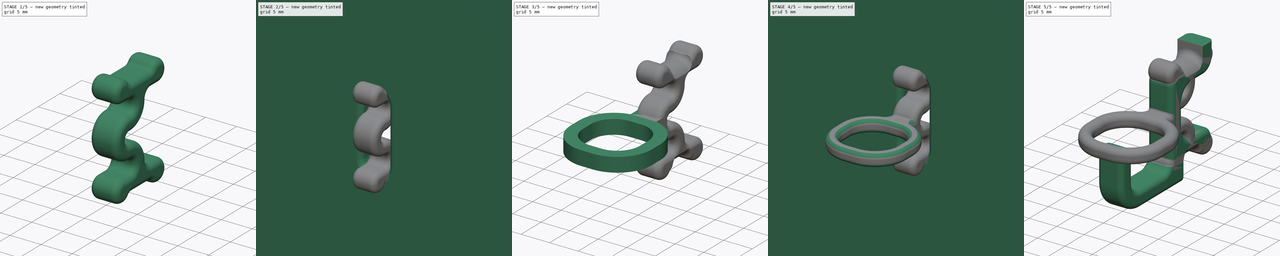
[diagram: build sequence overview — one tinted view per stage of 5, left to right]
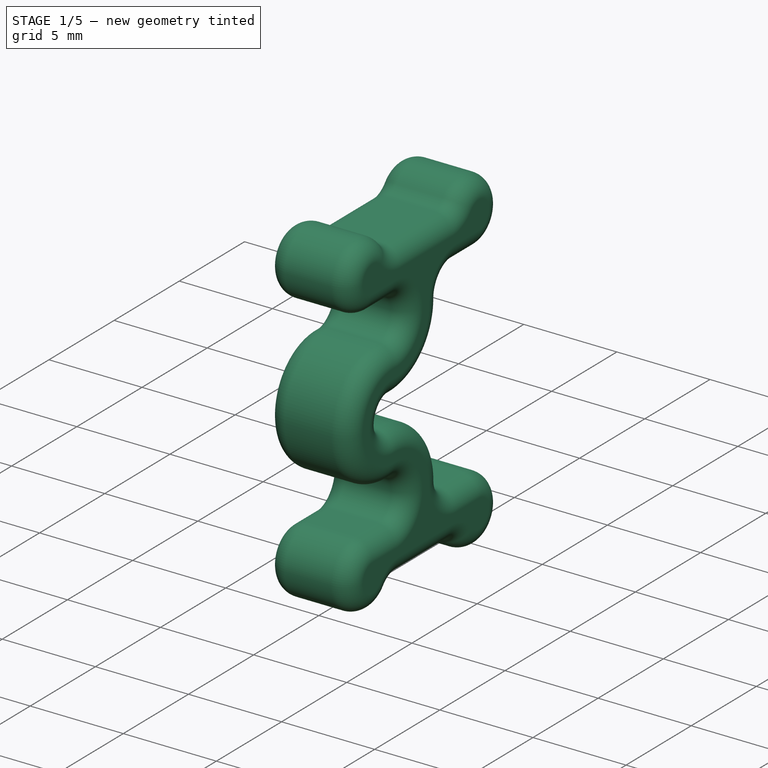
[diagram: stage 1 of 5 — iso view after this stage's code; geometry added in this stage tinted green]
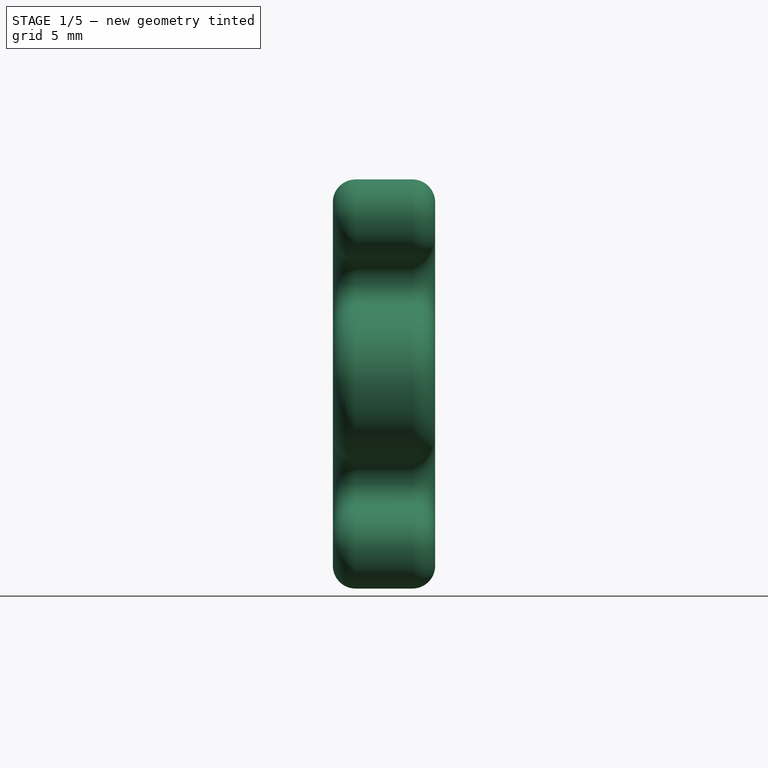
[diagram: stage 1 of 5 — front view after this stage's code; geometry added in this stage tinted green]
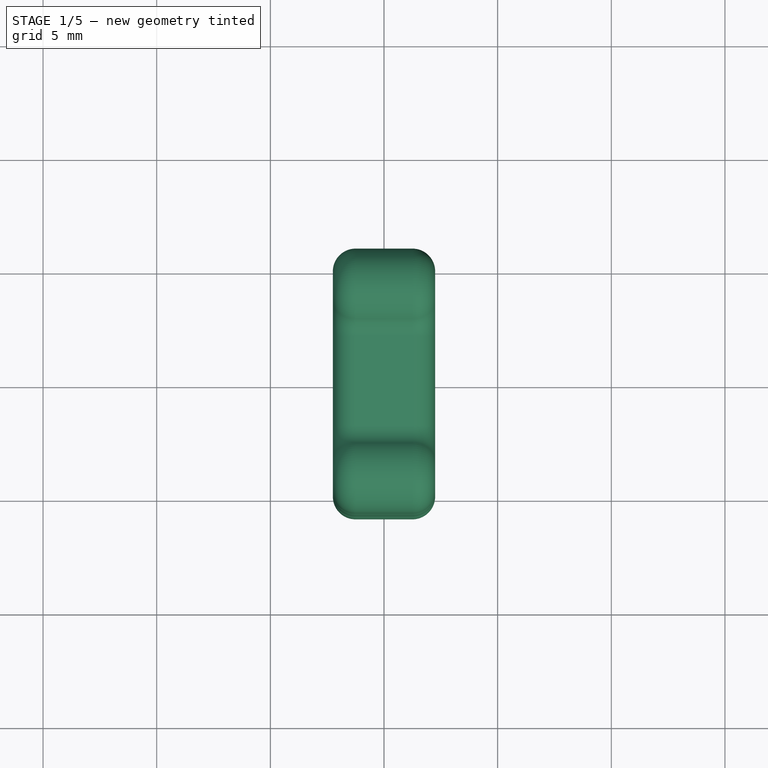
[diagram: stage 1 of 5 — top view after this stage's code; geometry added in this stage tinted green]
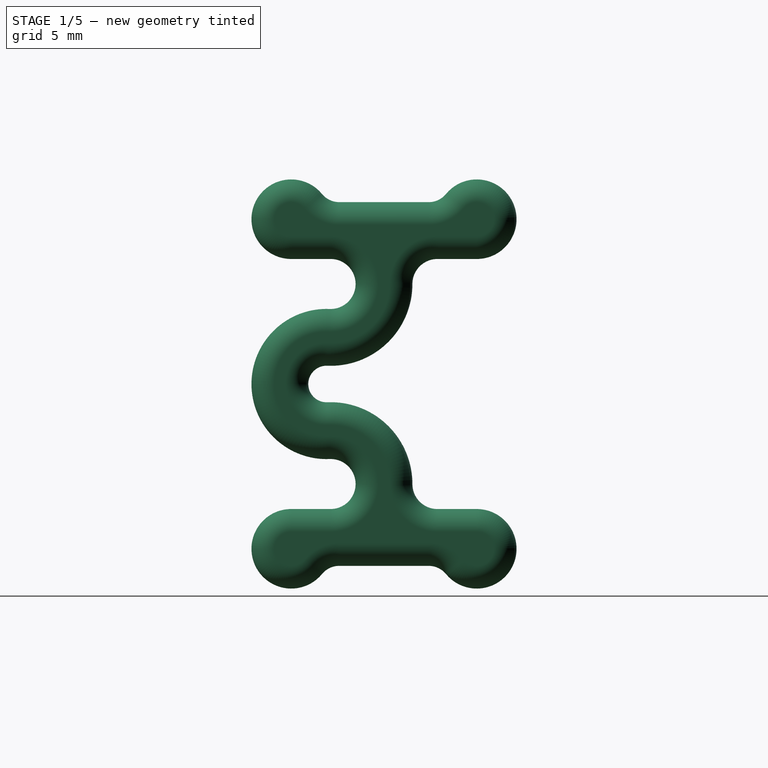
[diagram: stage 1 of 5 — right view after this stage's code; geometry added in this stage tinted green]
FCSTD DOCUMENT  (FreeCAD 1.0R39109 (Git))
Label: ikea skadis hooks
License: All rights reserved
objects: PartDesign::Body×7, Sketcher::SketchObject×5, PartDesign::Pad×4, PartDesign::Fillet×4, PartDesign::FeatureBase×3, PartDesign::Boolean×3, PartDesign::Pocket×1, PartDesign::Mirrored×1
note: 58 computed .brp shape members not serialized (recipe doc carries the construction recipe); baked Part::Feature solids carry a one-line shape summary decoded from their .brp

FEATURE [PartDesign::Body] Body002  label="jc"
  AllowCompound = true
  Group = -> [Sketch006,Pad004,Boolean,Fillet001]
  Origin = -> Origin002
  Tip = -> Fillet001
FEATURE [Sketcher::SketchObject] Sketch007
  ArcFitTolerance = 1e-06
  AttachmentSupport = -> [YZ_Plane004]
  FullyConstrained = true
  MakeInternals = false
  MapMode = 5
  Placement = pos=(0,0,0) rot=(0.57735,0.57735,0.57735;2.0944rad)
  sketch-geometry (15):
    g0: ArcOfCircle CenterX=4.08114 CenterY=7.25 CenterZ=0 NormalX=0 NormalY=0 NormalZ=1 AngleXU=0 Radius=1.75 StartAngle=4.71239 EndAngle=8.98187
    g1: LineSegment StartX=2.5 StartY=8 StartZ=0 EndX=0 EndY=8 EndZ=0
    g2: LineSegment StartX=0 StartY=8 StartZ=0 EndX=-2.5 EndY=8 EndZ=0
    g3: ArcOfCircle CenterX=-4.08114 CenterY=7.25 CenterZ=0 NormalX=0 NormalY=0 NormalZ=1 AngleXU=0 Radius=1.75 StartAngle=0.442911 EndAngle=4.71239
    g4: LineSegment [constr] StartX=-4.08114 StartY=9 StartZ=0 EndX=4.08114 EndY=9 EndZ=0
    g5: LineSegment [constr] StartX=-4.08114 StartY=5.5 StartZ=0 EndX=4.08114 EndY=5.5 EndZ=0
    g6: ArcOfCircle CenterX=-2.35 CenterY=4.4 CenterZ=0 NormalX=0 NormalY=0 NormalZ=1 AngleXU=0 Radius=1.1 StartAngle=4.67206 EndAngle=7.85398
    g7: ArcOfCircle CenterX=2.35 CenterY=4.4 CenterZ=0 NormalX=0 NormalY=0 NormalZ=1 AngleXU=0 Radius=1.1 StartAngle=1.5708 EndAngle=3.14159
    g8: LineSegment StartX=-4.08114 StartY=5.5 StartZ=0 EndX=-2.35 EndY=5.5 EndZ=0
    g9: LineSegment StartX=2.35 StartY=5.5 StartZ=0 EndX=4.08114 EndY=5.5 EndZ=0
    g10: ArcOfCircle CenterX=-2.35 CenterY=4.4 CenterZ=0 NormalX=0 NormalY=0 NormalZ=1 AngleXU=0 Radius=3.6 StartAngle=4.67206 EndAngle=6.28319
    g11: ArcOfCircle CenterX=-2.52756 CenterY=0 CenterZ=0 NormalX=0 NormalY=0 NormalZ=1 AngleXU=0 Radius=0.803581 StartAngle=1.53046 EndAngle=3.14159
    g12: ArcOfCircle CenterX=-2.52756 CenterY=0 CenterZ=0 NormalX=0 NormalY=0 NormalZ=1 AngleXU=0 Radius=3.30358 StartAngle=1.53046 EndAngle=3.14159
    g13: LineSegment [constr] StartX=-5.83114 StartY=7.25 StartZ=0 EndX=-5.83114 EndY=0 EndZ=0
    g14: LineSegment StartX=-5.83114 StartY=0 StartZ=0 EndX=-3.33114 EndY=1e-16 EndZ=0
  constraints (40):
    c: Coincident(g1,g0)
    c: PointOnObject(g1,g-2)
    c: Horizontal(g1)
    c: Coincident(g2,g1)
    c: Horizontal(g2)
    c: Coincident(g3,g2)
    c: Equal(g3,g0)
    c: Symmetric(g3,g0,g-2)
    c: DistanceX(g1,g1) = 2.5
    c: Tangent(g4,g0) = 1.5708
    c: DistanceY(g-1,g1) = 8
    c: Distance(g1,g4) = 1
    c: Tangent(g3,g5) = -1.5708
    c: Tangent(g4,g3) = 1.5708
    c: Tangent(g0,g5) = -1.5708
    c: Distance(g1,g5) = 2.5
    c: Tangent(g6,g5) = 1.5708
    c: Tangent(g7,g5) = 1.5708
    c: Horizontal(g7,g7)
    c: Equal(g6,g7)
    c: Radius(g6) = 1.1
    c: Distance(g6,g-2) = 1.25
    c: Tangent(g8,g3) = -1.5708
    c: Coincident(g9,g7)
    c: Coincident(g9,g0)
    c: Vertical(g6,g8)
    c: Distance(g7,g-2) = 1.25
    c: Coincident(g10,g6)
    c: Coincident(g10,g7)
    c: PointOnObject(g11,g-1)
    c: PointOnObject(g11,g-1)
    c: Coincident(g12,g11)
    c: PointOnObject(g12,g-1)
    c: Tangent(g12,g6) = 1.5708
    c: Tangent(g11,g10) = 1.5708
    c: Tangent(g13,g3) = -1.5708
    c: Coincident(g13,g12)
    c: Vertical(g13)
    c: Coincident(g14,g12)
    c: Coincident(g14,g11)
FEATURE [PartDesign::Pad] Pad005
  Direction = (1,0,0)
  Length = 4.5
  Length2 = 10
  Midplane = true
  Placement = pos=(0,0,0) rot=(1,1,1;2.0944rad)
  Profile = -> Sketch007
  ReferenceAxis = -> Sketch007 [N_Axis]
  Suppressed = false
  Type = 0
FEATURE [PartDesign::Body] Body005
  AllowCompound = true
  Group = -> [Clone001]
  Origin = -> Origin005
  Tip = -> Clone001
FEATURE [PartDesign::Mirrored] Mirrored
  BaseFeature = -> Pad005
  MirrorPlane = -> XY_Plane004
  Placement = pos=(0,0,0) rot=(1,1,1;2.0944rad)
  Suppressed = false
  TransformMode = 1
FEATURE [PartDesign::Fillet] Fillet002
  Base = -> Mirrored
  BaseFeature = -> Mirrored
  Placement = pos=(0,0,0) rot=(1,1,1;2.0944rad)
  Radius = 1
  SupportTransform = false
  Suppressed = false
  UseAllEdges = true
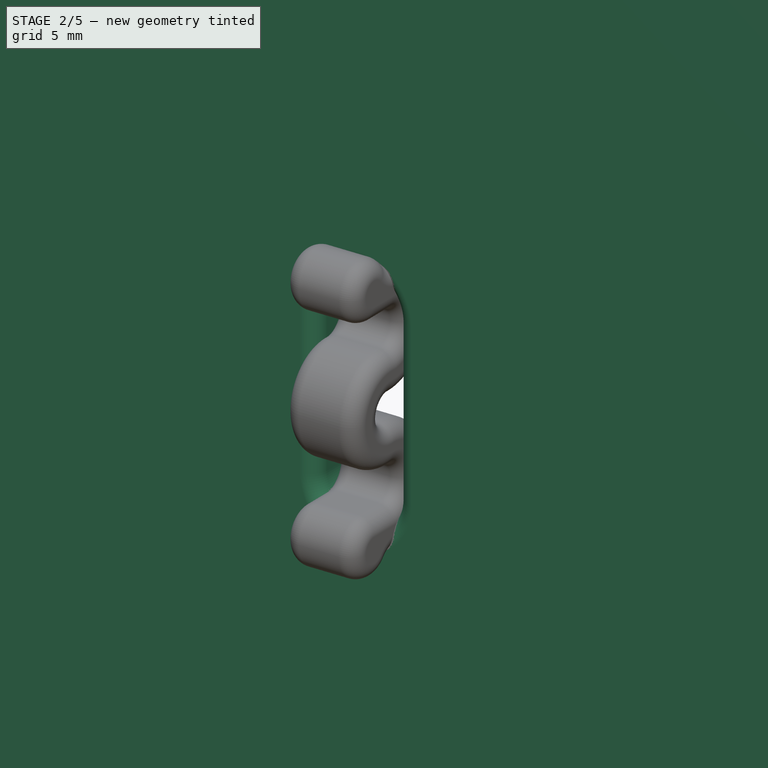
[diagram: stage 2 of 5 — iso view after this stage's code; geometry added in this stage tinted green]
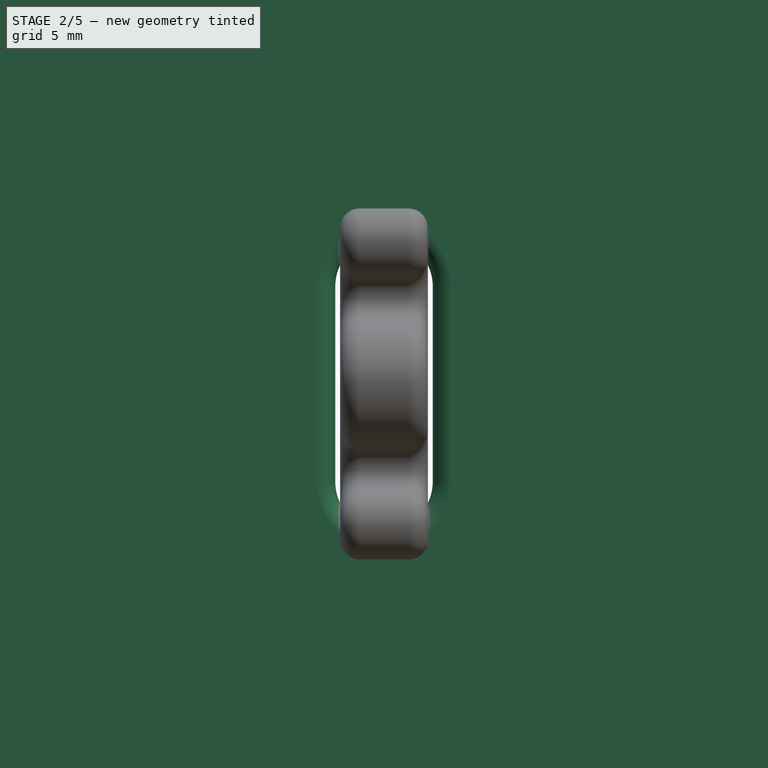
[diagram: stage 2 of 5 — front view after this stage's code; geometry added in this stage tinted green]
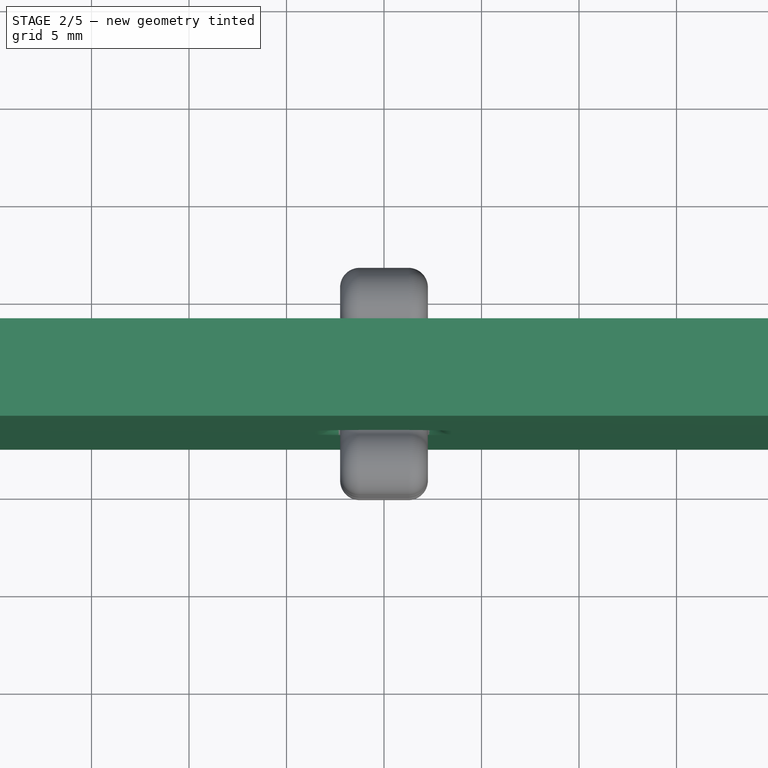
[diagram: stage 2 of 5 — top view after this stage's code; geometry added in this stage tinted green]
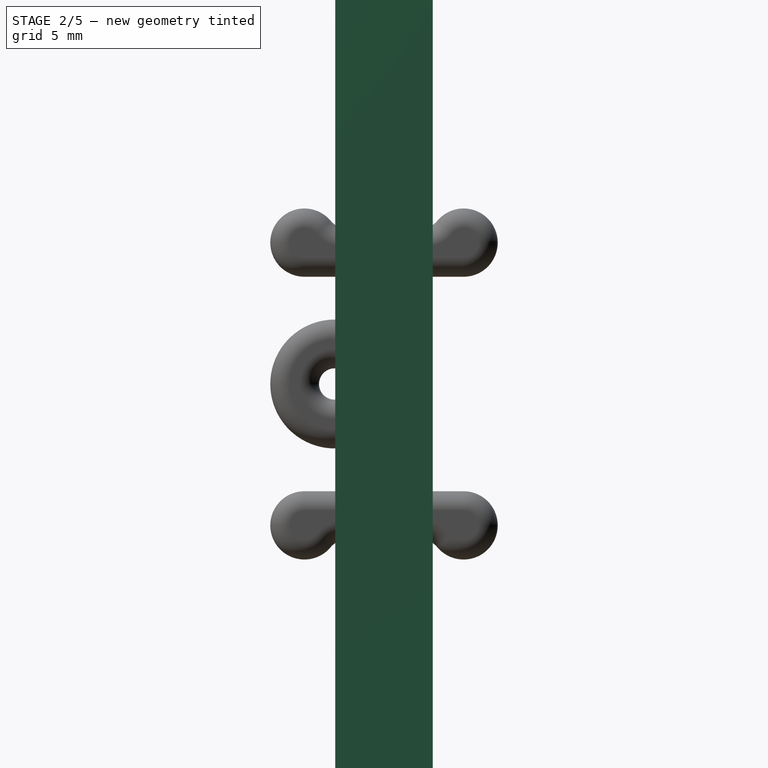
[diagram: stage 2 of 5 — right view after this stage's code; geometry added in this stage tinted green]
FEATURE [Sketcher::SketchObject] Sketch
  ArcFitTolerance = 1e-06
  AttachmentSupport = -> [XZ_Plane]
  FullyConstrained = true
  MakeInternals = false
  MapMode = 5
  Placement = pos=(0,0,0) rot=(1,0,0;1.5708rad)
  sketch-geometry (4):
    g0: ArcOfCircle CenterX=0 CenterY=-5 CenterZ=0 NormalX=0 NormalY=0 NormalZ=1 AngleXU=0 Radius=2.5 StartAngle=3.14159 EndAngle=6.28319
    g1: ArcOfCircle CenterX=1.766e-13 CenterY=5 CenterZ=0 NormalX=0 NormalY=0 NormalZ=1 AngleXU=0 Radius=2.5 StartAngle=0 EndAngle=3.14159
    g2: LineSegment StartX=-2.5 StartY=-5 StartZ=0 EndX=-2.5 EndY=5 EndZ=0
    g3: LineSegment StartX=2.5 StartY=-5 StartZ=0 EndX=2.5 EndY=5 EndZ=0
  constraints (10):
    c: Tangent(g0,g2) = 1.5708
    c: Tangent(g0,g3) = -1.5708
    c: Tangent(g1,g2) = 1.5708
    c: Tangent(g1,g3) = -1.5708
    c: Equal(g0,g1)
    c: Vertical(g3)
    c: PointOnObject(g0,g-2)
    c: Radius(g0) = 2.5
    c: Distance(g1,g-1) = 5
    c: Distance(g0,g-1) = 5
FEATURE [Sketcher::SketchObject] Sketch001
  ArcFitTolerance = 1e-06
  AttachmentSupport = -> [XZ_Plane]
  FullyConstrained = true
  MakeInternals = false
  MapMode = 5
  Placement = pos=(0,0,0) rot=(1,0,0;1.5708rad)
  sketch-geometry (5):
    g0: LineSegment StartX=-50 StartY=50 StartZ=0 EndX=-50 EndY=-50 EndZ=0
    g1: LineSegment StartX=-50 StartY=-50 StartZ=0 EndX=50 EndY=-50 EndZ=0
    g2: LineSegment StartX=50 StartY=-50 StartZ=0 EndX=50 EndY=50 EndZ=0
    g3: LineSegment StartX=50 StartY=50 StartZ=0 EndX=-50 EndY=50 EndZ=0
    g4: GeomPoint [constr] X=-1e-16 Y=5e-16 Z=0
  constraints (12):
    c: Coincident(g0,g1)
    c: Coincident(g1,g2)
    c: Coincident(g2,g3)
    c: Coincident(g3,g0)
    c: Vertical(g0)
    c: Vertical(g2)
    c: Horizontal(g1)
    c: Horizontal(g3)
    c: Symmetric(g2,g0,g4)
    c: Coincident(g4,g-1)
    c: Equal(g1,g2)
    c: DistanceY(g2,g2) = 100
FEATURE [PartDesign::Pad] Pad
  Direction = (0,-1,2e-16)
  Length = 5
  Length2 = 10
  Midplane = true
  Placement = pos=(0,0,0) rot=(1,0,0;1.5708rad)
  Profile = -> Sketch001
  ReferenceAxis = -> Sketch001 [N_Axis]
  Suppressed = false
  Type = 0
FEATURE [PartDesign::Pocket] Pocket
  BaseFeature = -> Pad
  Direction = (0,1,-2e-16)
  Length = 5
  Length2 = 5
  Midplane = true
  Placement = pos=(0,0,0) rot=(1,0,0;1.5708rad)
  Profile = -> Sketch
  ReferenceAxis = -> Sketch [N_Axis]
  Suppressed = false
  Type = 1
FEATURE [PartDesign::Fillet] Fillet
  Base = -> Pocket [Edge20,Edge15]
  BaseFeature = -> Pocket
  Placement = pos=(0,0,0) rot=(1,0,0;1.5708rad)
  Radius = 1
  SupportTransform = false
  Suppressed = false
  UseAllEdges = false
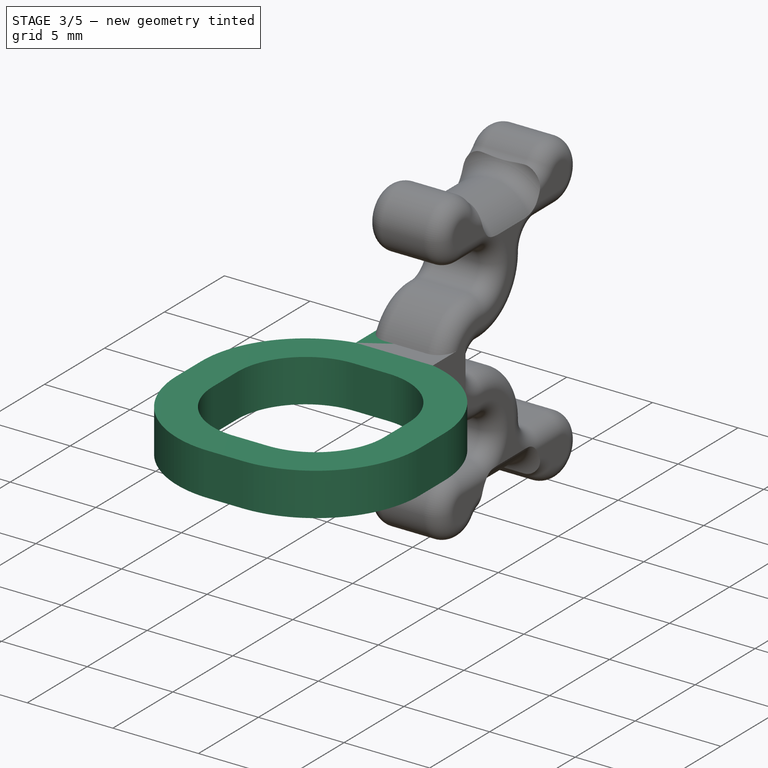
[diagram: stage 3 of 5 — iso view after this stage's code; geometry added in this stage tinted green]
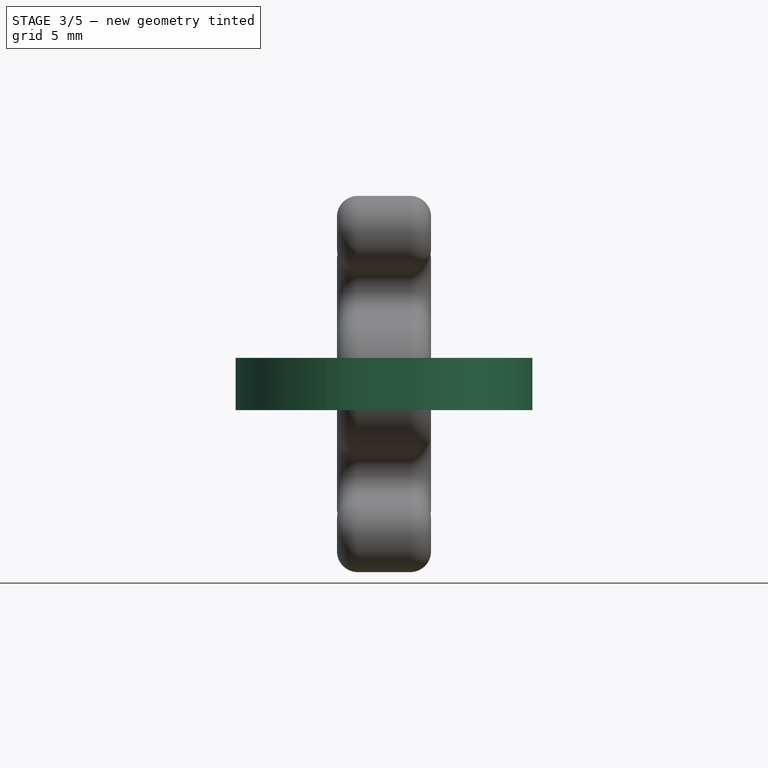
[diagram: stage 3 of 5 — front view after this stage's code; geometry added in this stage tinted green]
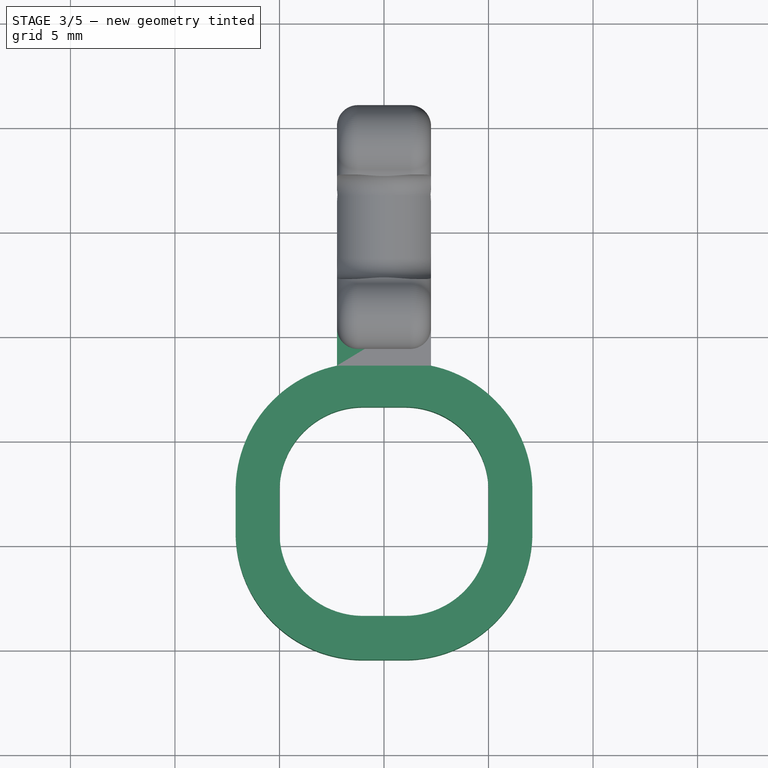
[diagram: stage 3 of 5 — top view after this stage's code; geometry added in this stage tinted green]
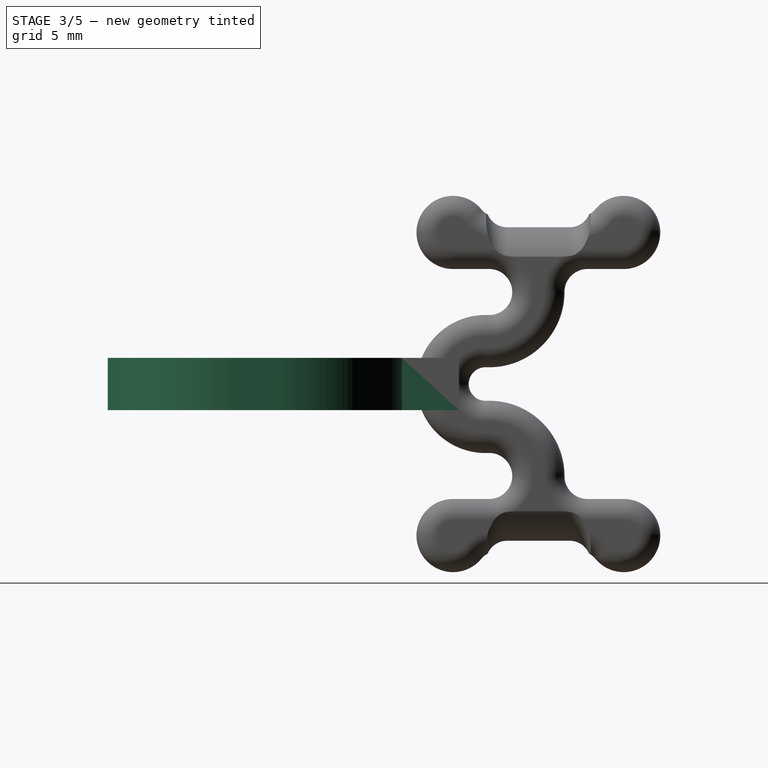
[diagram: stage 3 of 5 — right view after this stage's code; geometry added in this stage tinted green]
FEATURE [PartDesign::FeatureBase] Clone001
  BaseFeature = -> Body
  Suppressed = false
FEATURE [PartDesign::Boolean] Boolean001
  BaseFeature = -> Fillet002
  Group = -> [Body005]
  Suppressed = false
  Type = 1
  UsePlacement = true
FEATURE [PartDesign::Body] Body004  label="bone"
  AllowCompound = true
  Group = -> [Sketch007,Pad005,Mirrored,Fillet002,Boolean001]
  Origin = -> Origin004
  Tip = -> Boolean001
FEATURE [Sketcher::SketchObject] Sketch009
  ArcFitTolerance = 1e-06
  AttachmentSupport = -> [XY_Plane006]
  FullyConstrained = true
  MakeInternals = false
  MapMode = 5
  sketch-geometry (25):
    g0: LineSegment StartX=-5 StartY=-12.5 StartZ=0 EndX=-5 EndY=-14.5 EndZ=0
    g1: LineSegment StartX=-1 StartY=-18.5 StartZ=0 EndX=1 EndY=-18.5 EndZ=0
    g2: LineSegment StartX=5 StartY=-14.5 StartZ=0 EndX=5 EndY=-12.5 EndZ=0
    g3: LineSegment StartX=1 StartY=-8.5 StartZ=0 EndX=-1 EndY=-8.5 EndZ=0
    g4: ArcOfCircle CenterX=-1 CenterY=-12.5 CenterZ=0 NormalX=0 NormalY=0 NormalZ=1 AngleXU=0 Radius=4 StartAngle=1.5708 EndAngle=3.14159
    g5: ArcOfCircle CenterX=-1 CenterY=-14.5 CenterZ=0 NormalX=0 NormalY=0 NormalZ=1 AngleXU=0 Radius=4 StartAngle=3.14159 EndAngle=4.71239
    g6: ArcOfCircle CenterX=1 CenterY=-14.5 CenterZ=0 NormalX=0 NormalY=0 NormalZ=1 AngleXU=0 Radius=4 StartAngle=4.71239 EndAngle=6.28319
    g7: ArcOfCircle CenterX=1 CenterY=-12.5 CenterZ=0 NormalX=0 NormalY=0 NormalZ=1 AngleXU=0 Radius=4 StartAngle=0 EndAngle=1.5708
    g8: LineSegment StartX=-7.1 StartY=-12.5 StartZ=0 EndX=-7.1 EndY=-14.5 EndZ=0
    g9: LineSegment StartX=-1 StartY=-20.6 StartZ=0 EndX=1 EndY=-20.6 EndZ=0
    g10: LineSegment StartX=7.1 StartY=-14.5 StartZ=0 EndX=7.1 EndY=-12.5 EndZ=0
    g11: LineSegment [constr] StartX=1 StartY=-6.4 StartZ=0 EndX=-1 EndY=-6.4 EndZ=0
    g12: ArcOfCircle [constr] CenterX=-1 CenterY=-12.5 CenterZ=0 NormalX=0 NormalY=0 NormalZ=1 AngleXU=0 Radius=6.1 StartAngle=1.5708 EndAngle=3.14159
    g13: ArcOfCircle CenterX=-1 CenterY=-14.5 CenterZ=0 NormalX=0 NormalY=0 NormalZ=1 AngleXU=0 Radius=6.1 StartAngle=3.14159 EndAngle=4.71239
    g14: ArcOfCircle CenterX=1 CenterY=-14.5 CenterZ=0 NormalX=0 NormalY=0 NormalZ=1 AngleXU=0 Radius=6.1 StartAngle=4.71239 EndAngle=6.28319
    g15: ArcOfCircle [constr] CenterX=1 CenterY=-12.5 CenterZ=0 NormalX=0 NormalY=0 NormalZ=1 AngleXU=0 Radius=6.1 StartAngle=0 EndAngle=1.5708
    g16: GeomPoint [constr] X=5 Y=-18.5 Z=0
    g17: GeomPoint [constr] X=0 Y=-13.5 Z=0
    g18: LineSegment StartX=-2.25 StartY=-3.8 StartZ=0 EndX=-2.25 EndY=-6.52945 EndZ=0
    g19: LineSegment [constr] StartX=-2.25 StartY=-6.52945 StartZ=0 EndX=2.25 EndY=-6.52945 EndZ=0
    g20: LineSegment StartX=2.25 StartY=-6.52945 StartZ=0 EndX=2.25 EndY=-3.8 EndZ=0
    g21: LineSegment StartX=2.25 StartY=-3.8 StartZ=0 EndX=-2.25 EndY=-3.8 EndZ=0
    g22: GeomPoint [constr] X=0 Y=-5.16472 Z=0
    g23: ArcOfCircle CenterX=-1 CenterY=-12.5 CenterZ=0 NormalX=0 NormalY=0 NormalZ=1 AngleXU=0 Radius=6.1 StartAngle=1.77718 EndAngle=3.14159
    g24: ArcOfCircle CenterX=1 CenterY=-12.5 CenterZ=0 NormalX=0 NormalY=0 NormalZ=1 AngleXU=0 Radius=6.1 StartAngle=-4.9149e-10 EndAngle=1.36442
  constraints (58):
    c: Tangent(g0,g4) = -1.5708
    c: Tangent(g0,g5) = -1.5708
    c: Tangent(g1,g5) = -1.5708
    c: Tangent(g1,g6) = -1.5708
    c: Tangent(g2,g6) = -1.5708
    c: Tangent(g2,g7) = -1.5708
    c: Tangent(g3,g7) = -1.5708
    c: Tangent(g3,g4) = -1.5708
    c: Vertical(g0)
    c: Vertical(g2)
    c: Horizontal(g1)
    c: Horizontal(g3)
    c: Equal(g4,g5)
    c: Equal(g5,g6)
    c: Equal(g6,g7)
    c: Tangent(g8,g12) = -1.5708
    c: Tangent(g8,g13) = -1.5708
    c: Tangent(g9,g13) = -1.5708
    c: Tangent(g9,g14) = -1.5708
    c: Tangent(g10,g14) = -1.5708
    c: Tangent(g10,g15) = -1.5708
    c: Tangent(g11,g15) = -1.5708
    c: Tangent(g11,g12) = -1.5708
    c: Coincident(g4,g12)
    c: Coincident(g5,g13)
    c: Coincident(g6,g14)
    c: Coincident(g7,g15)
    c: Vertical(g8)
    c: Vertical(g10)
    c: Horizontal(g9)
    c: Symmetric(g2,g0,g17)
    c: PointOnObject(g16,g1)
    c: PointOnObject(g16,g2)
    c: PointOnObject(g17,g-2)
    c: DistanceX(g0,g2) = 10
    c: Equal(g1,g2)
    c: Radius(g6) = 4
    c: Distance(g2,g10) = 2.1
    c: Coincident(g18,g19)
    c: Coincident(g19,g20)
    c: Coincident(g20,g21)
    c: Coincident(g21,g18)
    c: Vertical(g18)
    c: Vertical(g20)
    c: Horizontal(g19)
    c: Horizontal(g21)
    c: Symmetric(g20,g18,g22)
    c: PointOnObject(g22,g-2)
    c: Distance(g19,g19) = 4.5
    c: PointOnObject(g19,g15)
    c: Coincident(g23,g18)
    c: Coincident(g23,g8)
    c: Coincident(g24,g19)
    c: Coincident(g24,g10)
    c: DistanceY(g17,g-1) = 13.5
    c: Equal(g23,g24)
    c: Tangent(g23,g12)
    c: DistanceY(g20,g-1) = 3.8
FEATURE [PartDesign::Pad] Pad006
  Direction = (0,0,1)
  Length = 2.5
  Length2 = 10
  Midplane = true
  Profile = -> Sketch009
  ReferenceAxis = -> Sketch009 [N_Axis]
  Suppressed = false
  Type = 0
FEATURE [PartDesign::FeatureBase] Clone002
  BaseFeature = -> Body004
  Suppressed = false
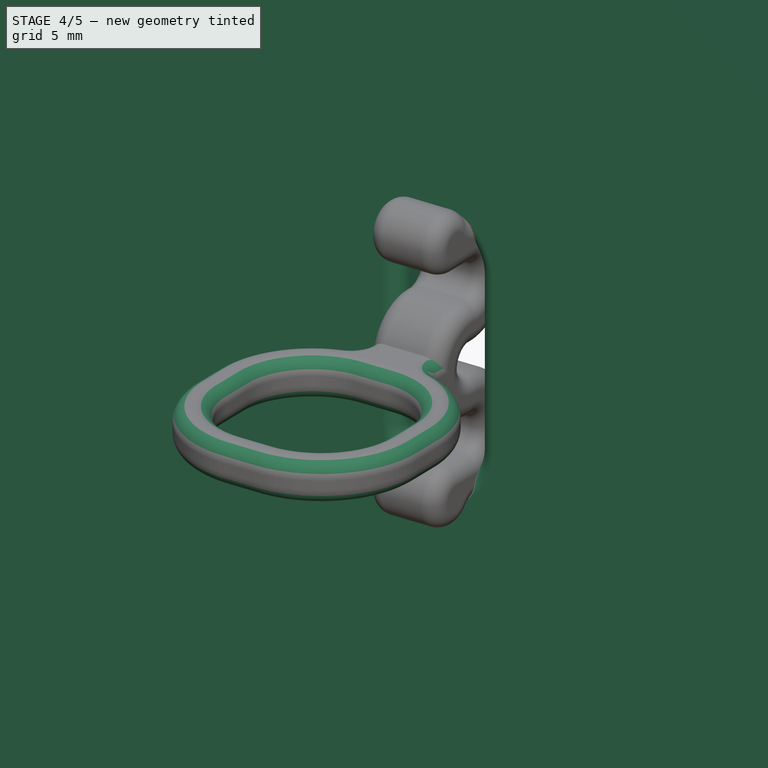
[diagram: stage 4 of 5 — iso view after this stage's code; geometry added in this stage tinted green]
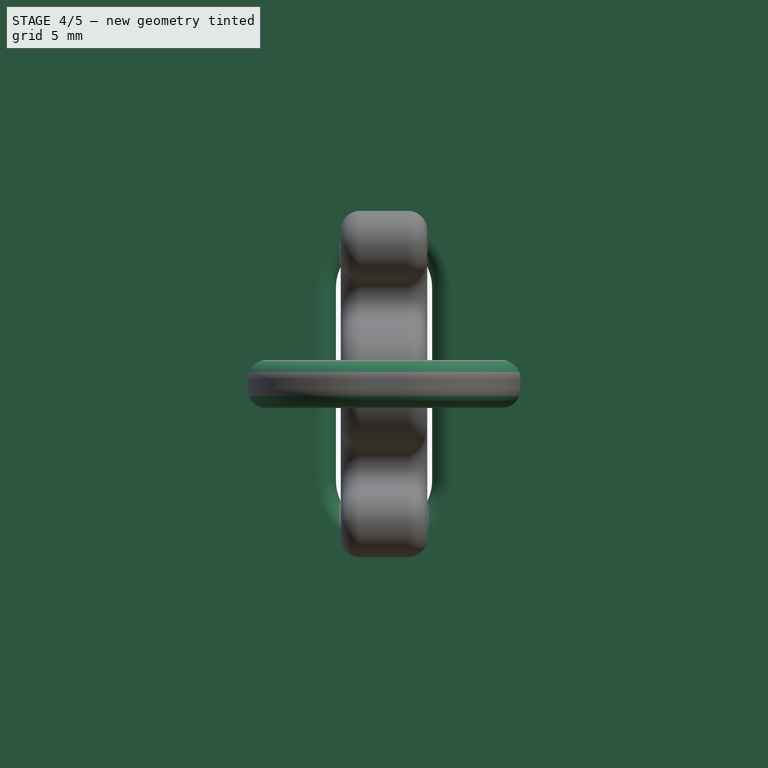
[diagram: stage 4 of 5 — front view after this stage's code; geometry added in this stage tinted green]
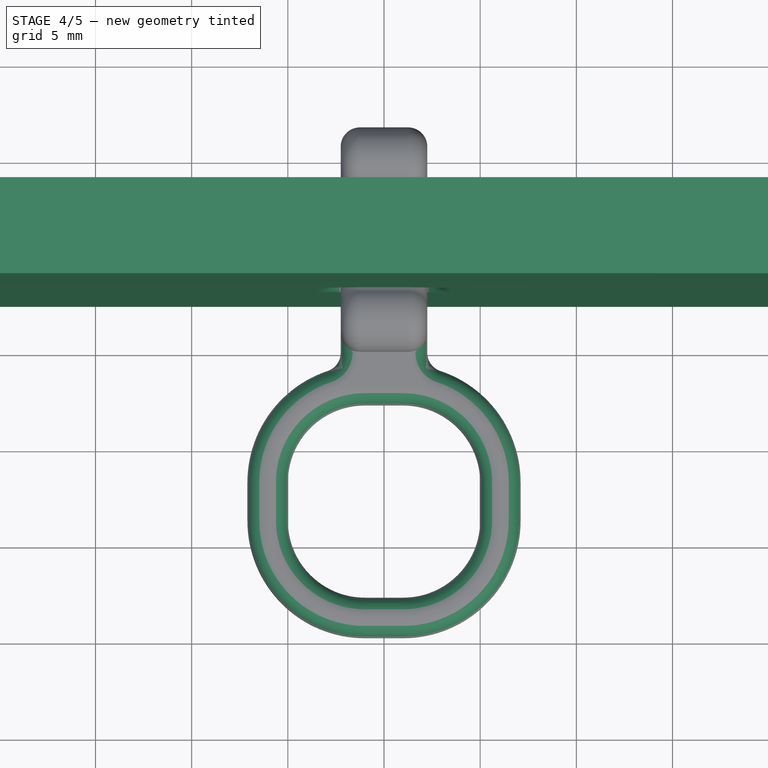
[diagram: stage 4 of 5 — top view after this stage's code; geometry added in this stage tinted green]
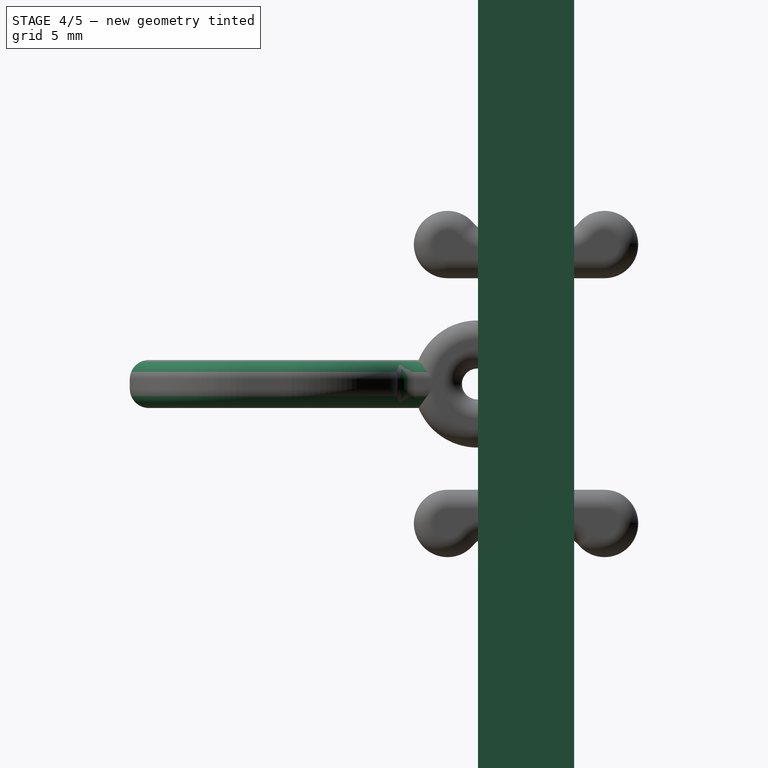
[diagram: stage 4 of 5 — right view after this stage's code; geometry added in this stage tinted green]
FEATURE [PartDesign::FeatureBase] Clone
  BaseFeature = -> Body
  Suppressed = false
FEATURE [PartDesign::Fillet] Fillet003
  Base = -> Pad006
  BaseFeature = -> Pad006
  Radius = 1
  SupportTransform = false
  Suppressed = false
  UseAllEdges = true
FEATURE [PartDesign::Body] Body007
  AllowCompound = true
  Group = -> [Clone002]
  Origin = -> Origin007
  Tip = -> Clone002
FEATURE [PartDesign::Boolean] Boolean002
  BaseFeature = -> Fillet003
  Group = -> [Body007]
  Suppressed = false
  Type = 0
  UsePlacement = true
FEATURE [PartDesign::Body] Body006  label="bone and ring"
  AllowCompound = true
  Group = -> [Sketch009,Pad006,Fillet003,Boolean002]
  Origin = -> Origin006
  Tip = -> Boolean002
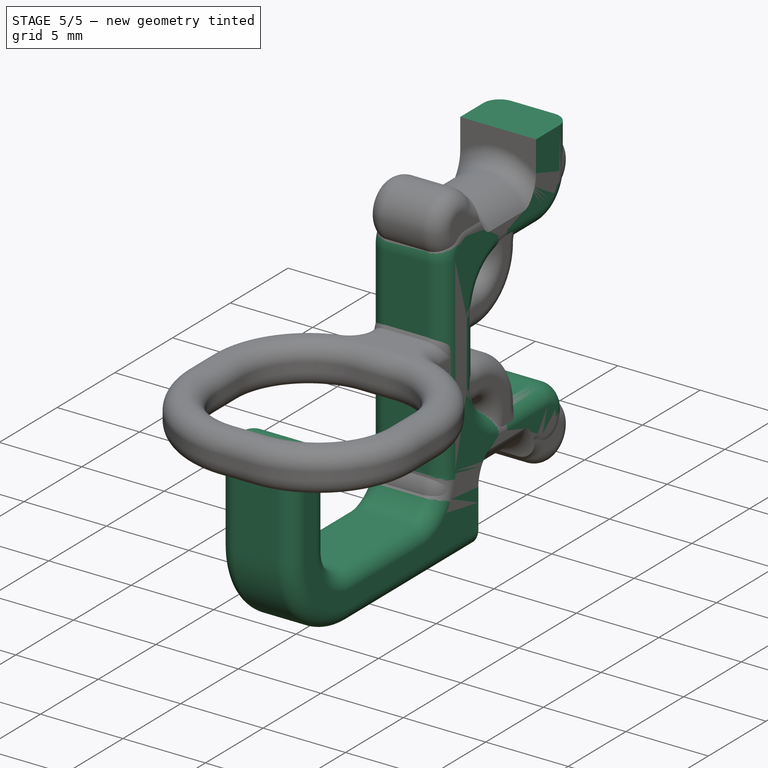
[diagram: stage 5 of 5 — iso view after this stage's code; geometry added in this stage tinted green]
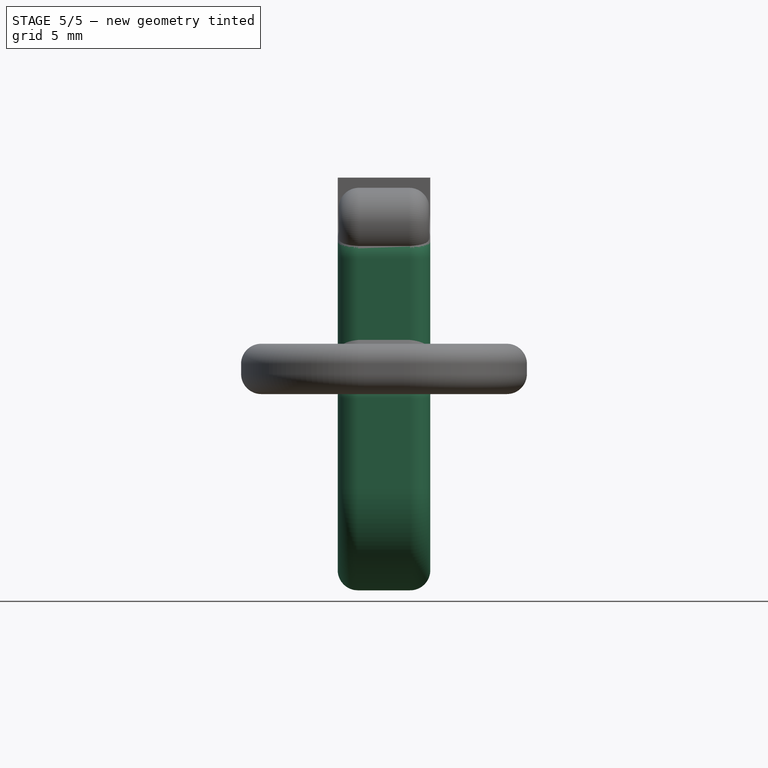
[diagram: stage 5 of 5 — front view after this stage's code; geometry added in this stage tinted green]
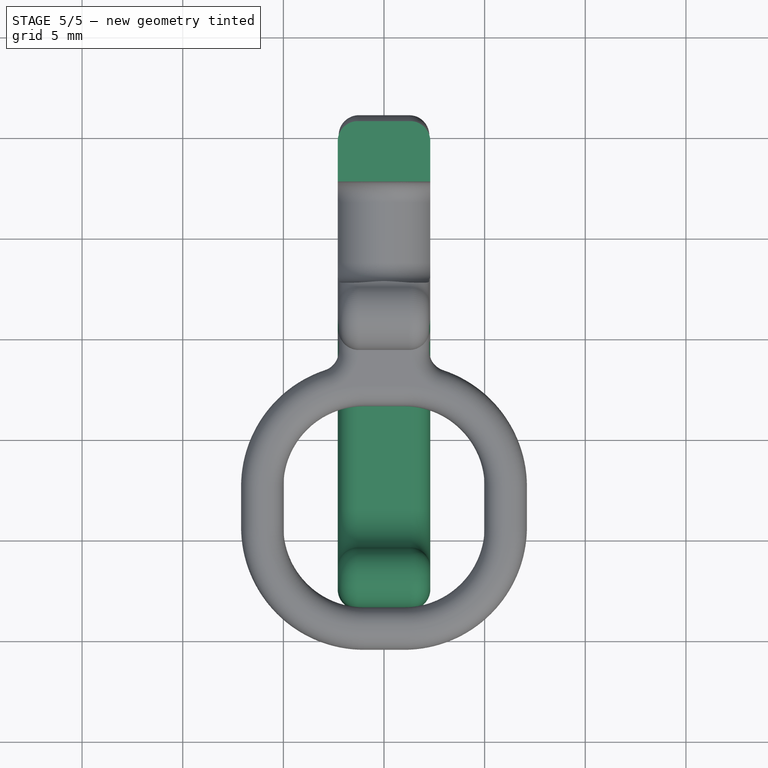
[diagram: stage 5 of 5 — top view after this stage's code; geometry added in this stage tinted green]
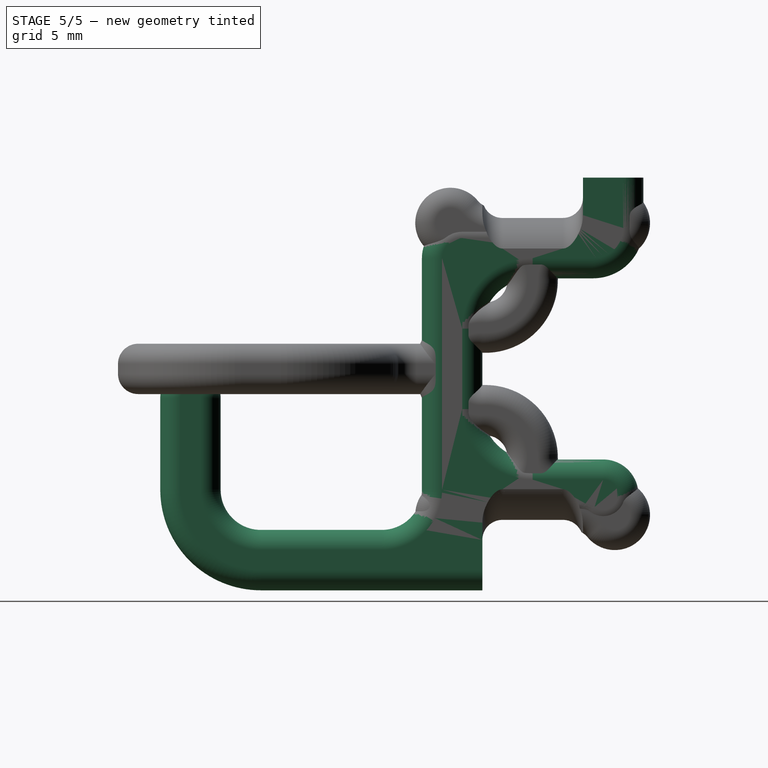
[diagram: stage 5 of 5 — right view after this stage's code; geometry added in this stage tinted green]
FEATURE [PartDesign::Body] Body  label="Hole"
  AllowCompound = true
  Group = -> [Sketch,Sketch001,Pad,Pocket,Fillet]
  Origin = -> Origin
  Tip = -> Fillet
FEATURE [Sketcher::SketchObject] Sketch006
  ArcFitTolerance = 1e-06
  AttachmentSupport = -> [YZ_Plane002]
  FullyConstrained = true
  MakeInternals = false
  MapMode = 5
  Placement = pos=(0,0,0) rot=(0.57735,0.57735,0.57735;2.0944rad)
  sketch-geometry (46):
    g0: LineSegment StartX=2.5 StartY=9.5 StartZ=0 EndX=2.5 EndY=8.5 EndZ=0
    g1: LineSegment StartX=1.5 StartY=7.5 StartZ=0 EndX=-3.5 EndY=7.5 EndZ=0
    g2: LineSegment StartX=-5.5 StartY=5.5 StartZ=0 EndX=-5.5 EndY=-6 EndZ=0
    g3: LineSegment StartX=-7.5 StartY=-8 StartZ=0 EndX=-13.5 EndY=-8 EndZ=0
    g4: LineSegment StartX=-15.5 StartY=-6 StartZ=0 EndX=-15.5 EndY=-1.45 EndZ=0
    g5: LineSegment StartX=-16.95 StartY=0 StartZ=0 EndX=-17.05 EndY=0 EndZ=0
    g6: LineSegment StartX=-18.5 StartY=-1.45 StartZ=0 EndX=-18.5 EndY=-6 EndZ=0
    g7: LineSegment StartX=-13.5 StartY=-11 StartZ=0 EndX=-2.5 EndY=-11 EndZ=0
    g8: LineSegment StartX=-2.5 StartY=-11 StartZ=0 EndX=-2.5 EndY=-8.5 EndZ=0
    g9: LineSegment StartX=-1.5 StartY=-7.5 StartZ=0 EndX=1.92504 EndY=-7.5 EndZ=0
    g10: LineSegment StartX=5.5 StartY=9.5 StartZ=0 EndX=2.5 EndY=9.5 EndZ=0
    g11: LineSegment StartX=3.50618 StartY=-4.5 StartZ=0 EndX=-9e-16 EndY=-4.5 EndZ=0
    g12: LineSegment StartX=-2.5 StartY=-2 StartZ=0 EndX=-2.5 EndY=2 EndZ=0
    g13: LineSegment StartX=-3e-16 StartY=4.5 StartZ=0 EndX=3 EndY=4.5 EndZ=0
    g14: LineSegment StartX=5.5 StartY=7 StartZ=0 EndX=5.5 EndY=9.5 EndZ=0
    g15: LineSegment [constr] StartX=2.5 StartY=7.5 StartZ=0 EndX=2.5 EndY=4.5 EndZ=0
    g16: LineSegment [constr] StartX=2.5 StartY=-7.5 StartZ=0 EndX=2.5 EndY=-4.5 EndZ=0
    g17: LineSegment [constr] StartX=-2.5 StartY=4.5 StartZ=0 EndX=-5.5 EndY=4.5 EndZ=0
    g18: ArcOfCircle CenterX=1.5 CenterY=8.5 CenterZ=0 NormalX=0 NormalY=0 NormalZ=1 AngleXU=0 Radius=1 StartAngle=4.71239 EndAngle=6.28319
    g19: GeomPoint [constr] X=2.5 Y=7.5 Z=0
    g20: ArcOfCircle CenterX=-4e-16 CenterY=2 CenterZ=0 NormalX=0 NormalY=0 NormalZ=1 AngleXU=0 Radius=2.5 StartAngle=1.5708 EndAngle=3.14159
    g21: GeomPoint [constr] X=-2.5 Y=4.5 Z=0
    g22: ArcOfCircle CenterX=-4e-16 CenterY=-2 CenterZ=0 NormalX=0 NormalY=0 NormalZ=1 AngleXU=0 Radius=2.5 StartAngle=3.14159 EndAngle=4.71239
    g23: GeomPoint [constr] X=-2.5 Y=-4.5 Z=0
    g24: ArcOfCircle CenterX=1.92504 CenterY=-8.5 CenterZ=0 NormalX=0 NormalY=0 NormalZ=1 AngleXU=0 Radius=1 StartAngle=0.958242 EndAngle=1.5708
    g25: GeomPoint [constr] X=2.5 Y=-7.5 Z=0
    g26: ArcOfCircle CenterX=-1.5 CenterY=-8.5 CenterZ=0 NormalX=0 NormalY=0 NormalZ=1 AngleXU=0 Radius=1 StartAngle=1.5708 EndAngle=3.14159
    g27: GeomPoint [constr] X=-2.5 Y=-7.5 Z=0
    g28: ArcOfCircle CenterX=-7.5 CenterY=-6 CenterZ=0 NormalX=0 NormalY=0 NormalZ=1 AngleXU=0 Radius=2 StartAngle=4.71239 EndAngle=6.28319
    g29: GeomPoint [constr] X=-5.5 Y=-8 Z=0
    g30: ArcOfCircle CenterX=-13.5 CenterY=-6 CenterZ=0 NormalX=0 NormalY=0 NormalZ=1 AngleXU=0 Radius=2 StartAngle=3.14159 EndAngle=4.71239
    g31: GeomPoint [constr] X=-15.5 Y=-8 Z=0
    g32: ArcOfCircle CenterX=-13.5 CenterY=-6 CenterZ=0 NormalX=0 NormalY=0 NormalZ=1 AngleXU=0 Radius=5 StartAngle=3.14159 EndAngle=4.71239
    g33: GeomPoint [constr] X=-18.5 Y=-11 Z=0
    g34: ArcOfCircle CenterX=-17.05 CenterY=-1.45 CenterZ=0 NormalX=0 NormalY=0 NormalZ=1 AngleXU=0 Radius=1.45 StartAngle=1.5708 EndAngle=3.14159
    g35: GeomPoint [constr] X=-18.5 Y=0 Z=0
    g36: ArcOfCircle CenterX=-16.95 CenterY=-1.45 CenterZ=0 NormalX=0 NormalY=0 NormalZ=1 AngleXU=0 Radius=1.45 StartAngle=0 EndAngle=1.5708
    g37: GeomPoint [constr] X=-15.5 Y=0 Z=0
    g38: ArcOfCircle CenterX=3 CenterY=7 CenterZ=0 NormalX=0 NormalY=0 NormalZ=1 AngleXU=0 Radius=2.5 StartAngle=4.71239 EndAngle=6.28319
    g39: GeomPoint [constr] X=5.5 Y=4.5 Z=0
    g40: ArcOfCircle CenterX=-3.5 CenterY=5.5 CenterZ=0 NormalX=0 NormalY=0 NormalZ=1 AngleXU=0 Radius=2 StartAngle=1.5708 EndAngle=3.14159
    g41: GeomPoint [constr] X=-5.5 Y=7.5 Z=0
    g42: ArcOfCircle CenterX=3.50618 CenterY=-6.25 CenterZ=0 NormalX=0 NormalY=0 NormalZ=1 AngleXU=0 Radius=1.75 StartAngle=4.09983 EndAngle=7.85398
    g43: GeomPoint [constr] X=5.5 Y=-4.5 Z=0
    g44: LineSegment [constr] StartX=-15.5 StartY=-8 StartZ=0 EndX=-18.5 EndY=-8 EndZ=0
    g45: LineSegment [constr] StartX=-15.5 StartY=-8 StartZ=0 EndX=-15.5 EndY=-11 EndZ=0
  constraints (113):
    c: Horizontal(g1)
    c: Vertical(g2)
    c: Horizontal(g3)
    c: Coincident(g7,g8)
    c: Vertical(g8)
    c: Horizontal(g9)
    c: Coincident(g10,g0)
    c: Horizontal(g11)
    c: Horizontal(g13)
    c: Coincident(g14,g10)
    c: Horizontal(g10)
    c: Horizontal(g5)
    c: Horizontal(g7)
    c: Vertical(g14)
    c: Vertical(g12)
    c: Vertical(g4)
    c: Vertical(g6)
    c: Vertical(g0)
    c: Distance(g10,g10) = 3
    c: Vertical(g19,g25)
    c: Vertical(g39,g43)
    c: Coincident(g15,g19)
    c: PointOnObject(g15,g13)
    c: Vertical(g15)
    c: Coincident(g16,g25)
    c: PointOnObject(g16,g11)
    c: Vertical(g16)
    c: Equal(g15,g16)
    c: Equal(g15,g10)
    c: Vertical(g23,g27)
    c: Coincident(g17,g21)
    c: PointOnObject(g17,g2)
    c: Horizontal(g17)
    c: Equal(g17,g10)
    c: DistanceY(g-1,g19) = 7.5
    c: DistanceY(g25,g-1) = 7.5
    c: DistanceX(g31,g29) = 10
    c: PointOnObject(g37,g-1)
    c: PointOnObject(g19,g0)
    c: PointOnObject(g19,g1)
    c: Tangent(g0,g18) = 1.5708
    c: Tangent(g1,g18) = 1.5708
    c: PointOnObject(g21,g13)
    c: PointOnObject(g21,g12)
    c: Tangent(g13,g20) = 1.5708
    c: Tangent(g12,g20) = 1.5708
    c: PointOnObject(g23,g12)
    c: PointOnObject(g23,g11)
    c: Tangent(g12,g22) = 1.5708
    c: Tangent(g11,g22) = 1.5708
    c: PointOnObject(g25,g9)
    c: Tangent(g9,g24) = 1.5708
    c: PointOnObject(g27,g9)
    c: PointOnObject(g27,g8)
    c: Tangent(g9,g26) = 1.5708
    c: Tangent(g8,g26) = 1.5708
    c: PointOnObject(g29,g2)
    c: PointOnObject(g29,g3)
    c: Tangent(g2,g28) = 1.5708
    c: Tangent(g3,g28) = 1.5708
    c: PointOnObject(g31,g4)
    c: PointOnObject(g31,g3)
    c: Tangent(g4,g30) = 1.5708
    c: Tangent(g3,g30) = 1.5708
    c: PointOnObject(g33,g6)
    c: PointOnObject(g33,g7)
    c: Tangent(g6,g32) = -1.5708
    c: Tangent(g7,g32) = -1.5708
    c: PointOnObject(g35,g6)
    c: PointOnObject(g35,g5)
    c: Tangent(g6,g34) = -1.5708
    c: Tangent(g5,g34) = -1.5708
    c: PointOnObject(g37,g5)
    c: PointOnObject(g37,g4)
    c: Tangent(g5,g36) = -1.5708
    c: Tangent(g4,g36) = -1.5708
    c: PointOnObject(g39,g13)
    c: PointOnObject(g39,g14)
    c: Tangent(g13,g38) = -1.5708
    c: Tangent(g14,g38) = -1.5708
    c: PointOnObject(g41,g1)
    c: PointOnObject(g41,g2)
    c: Tangent(g1,g40) = -1.5708
    c: Tangent(g2,g40) = -1.5708
    c: PointOnObject(g43,g11)
    c: Tangent(g11,g42) = -1.5708
    c: Equal(g18,g26)
    c: Equal(g26,g24)
    c: Radius(g18) = 1
    c: Equal(g30,g28)
    c: Radius(g30) = 2
    c: Coincident(g44,g31)
    c: PointOnObject(g44,g6)
    c: Horizontal(g44)
    c: Equal(g44,g17)
    c: Equal(g40,g28)
    c: Equal(g34,g36)
    c: Distance(g5,g5) = 0.1
    c: Equal(g20,g38)
    c: Equal(g38,g22)
    c: Radius(g38) = 2.5
    c: DistanceY(g15,g0) = 2
    c: Tangent(g24,g42) = 1.5708
    c: Distance(g24,g-2) = 2.5
    c: Radius(g42) = 1.75
    c: Coincident(g45,g31)
    c: PointOnObject(g45,g7)
    c: Vertical(g45)
    c: Equal(g45,g44)
    c: Distance(g8,g8) = 2.5
    c: Radius(g32) = 5
    c: Distance(g17,g-2) = 2.5
    c: Distance(g0,g-2) = 2.5
FEATURE [PartDesign::Pad] Pad004
  Direction = (1,0,0)
  Length = 4.6
  Length2 = 10
  Midplane = true
  Placement = pos=(0,0,0) rot=(1,1,1;2.0944rad)
  Profile = -> Sketch006
  ReferenceAxis = -> Sketch006 [N_Axis]
  Suppressed = false
  Type = 0
FEATURE [PartDesign::Body] Body003
  AllowCompound = true
  Group = -> [Clone]
  Origin = -> Origin003
  Tip = -> Clone
FEATURE [PartDesign::Boolean] Boolean
  BaseFeature = -> Pad004
  Group = -> [Body003]
  Suppressed = false
  Type = 1
  UsePlacement = true
FEATURE [PartDesign::Fillet] Fillet001
  Base = -> Boolean [Edge62,Edge32,Edge44,Edge14]
  BaseFeature = -> Boolean
  Radius = 1
  SupportTransform = false
  Suppressed = false
  UseAllEdges = false
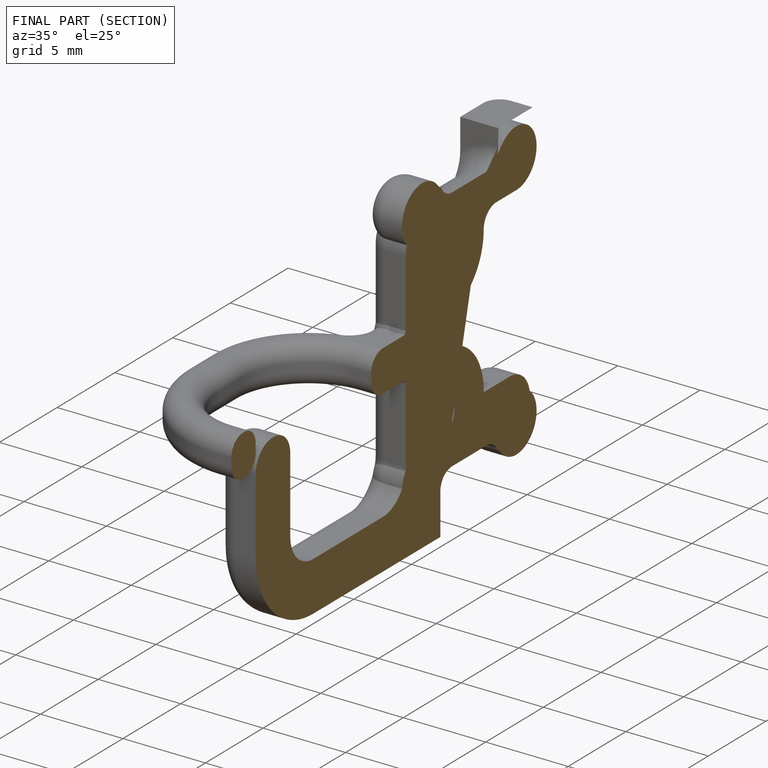
[diagram: finished part — half-section view (interior)]
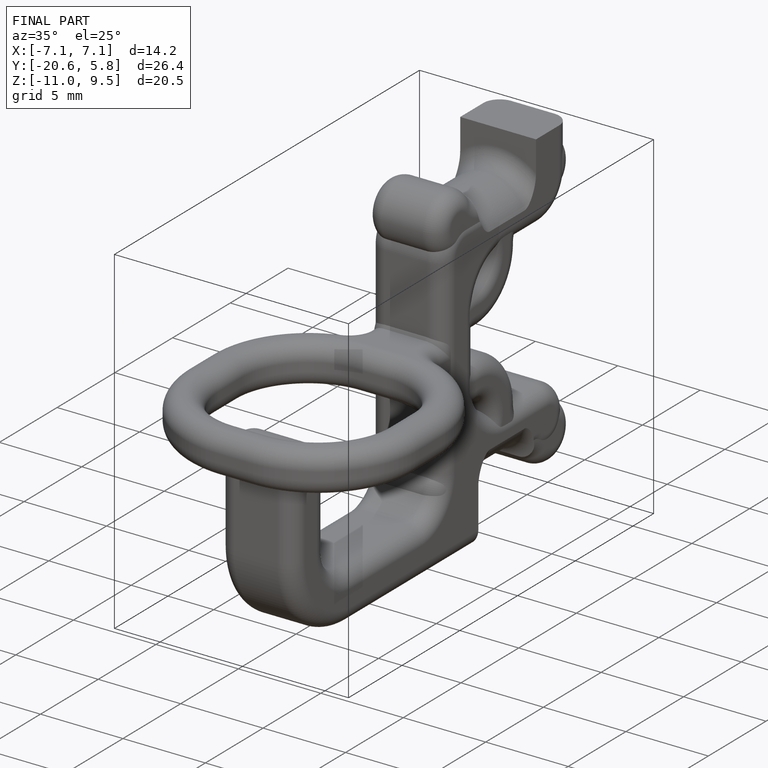
[diagram: finished part — iso view with bounding-box wireframe]
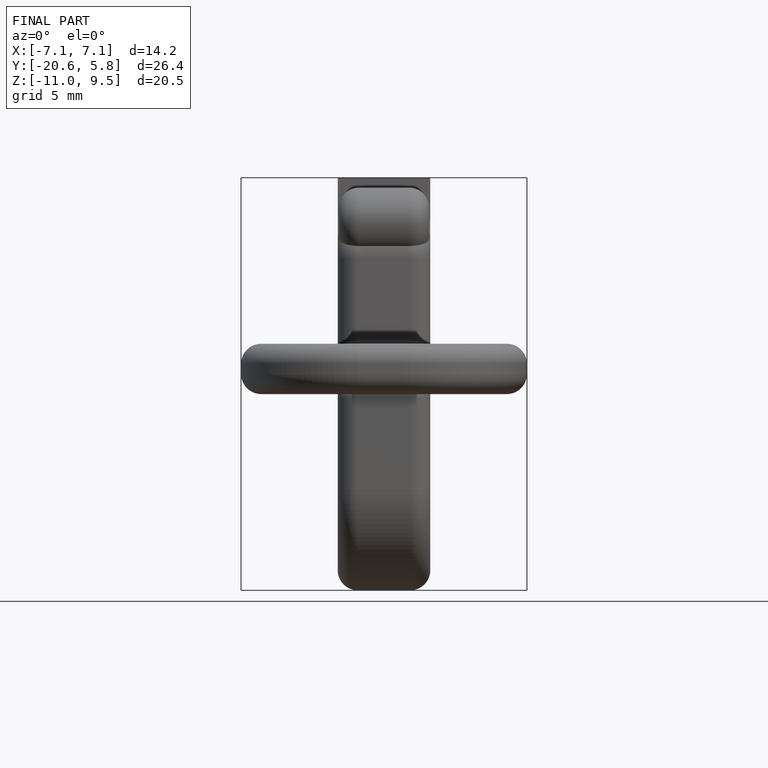
[diagram: finished part — front view with bounding-box wireframe]
